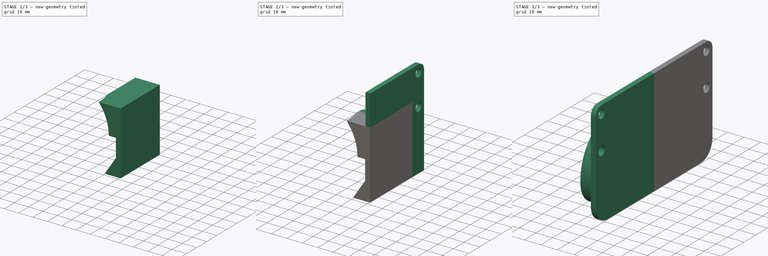
[diagram: build sequence overview — one tinted view per stage of 3, left to right]
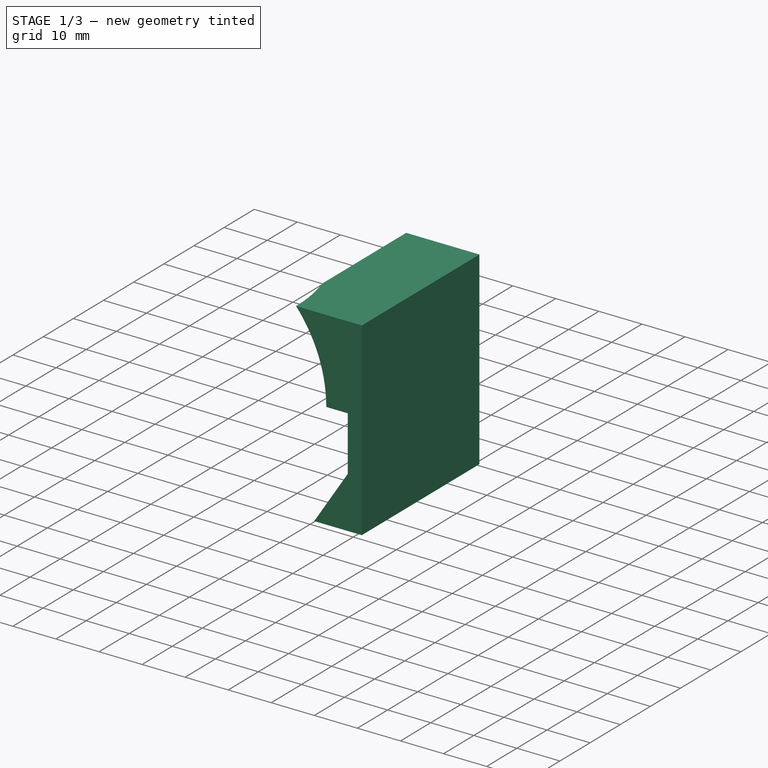
[diagram: stage 1 of 3 — iso view after this stage's code; geometry added in this stage tinted green]
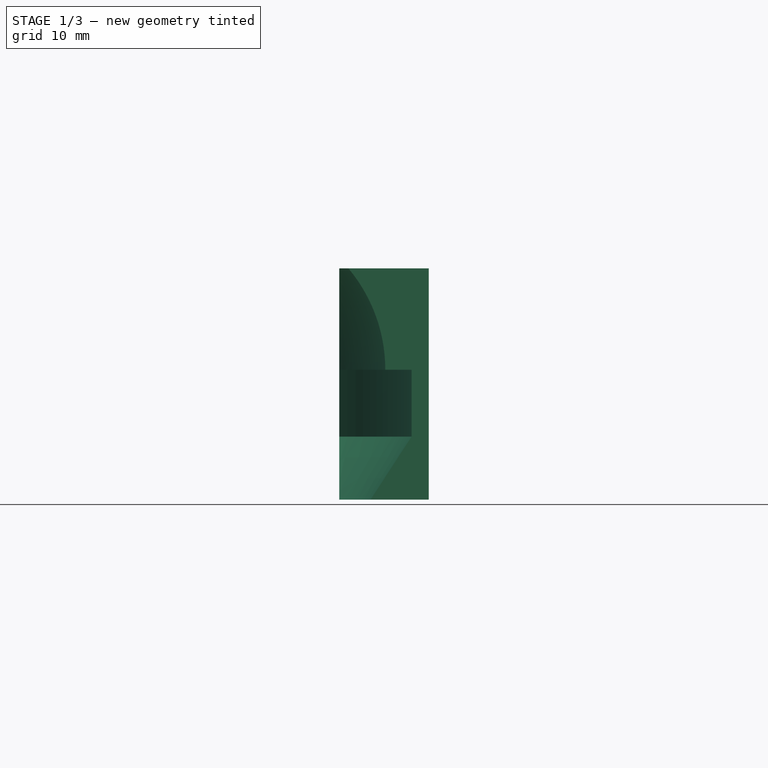
[diagram: stage 1 of 3 — front view after this stage's code; geometry added in this stage tinted green]
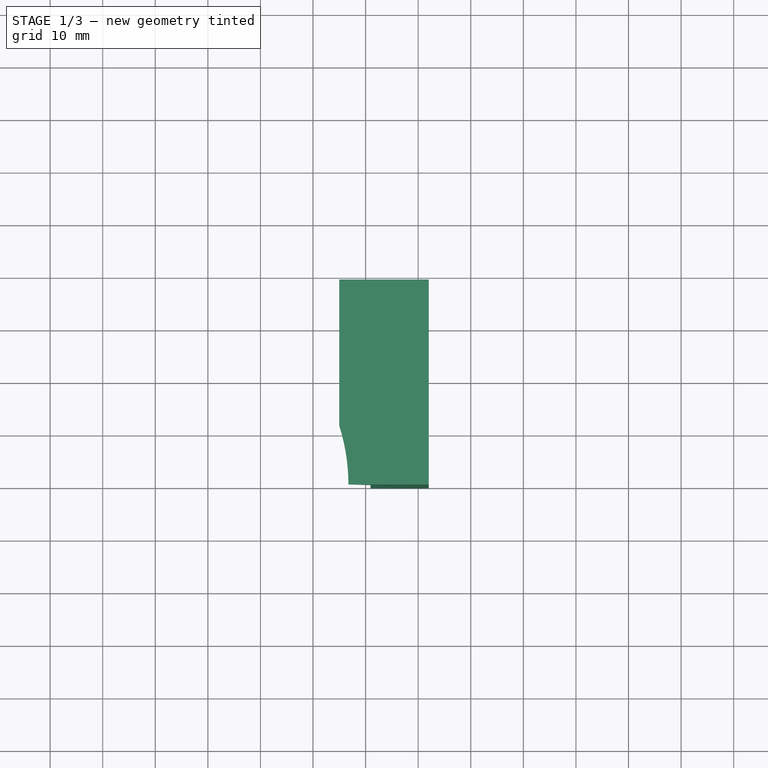
[diagram: stage 1 of 3 — top view after this stage's code; geometry added in this stage tinted green]
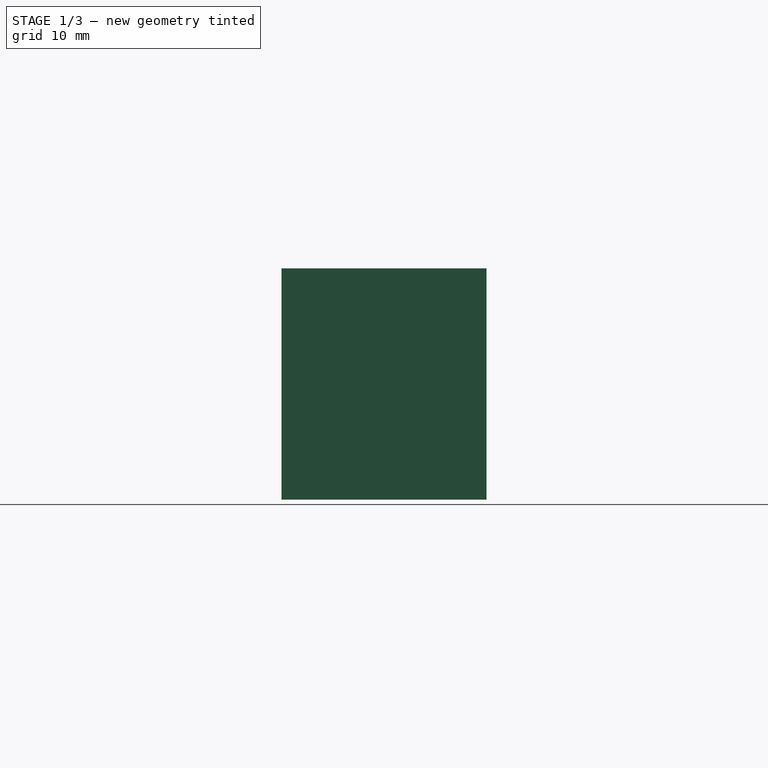
[diagram: stage 1 of 3 — right view after this stage's code; geometry added in this stage tinted green]
FCSTD DOCUMENT  (FreeCAD 0.19R24291 (Git))
Label: Толкатель
License: All rights reserved
LicenseURL: http://en.wikipedia.org/wiki/All_rights_reserved
objects: PartDesign::Fillet×3, Sketcher::SketchObject×2, PartDesign::AdditiveBox×1, PartDesign::Groove×1, PartDesign::Pad×1, PartDesign::Mirrored×1, PartDesign::Body×1
note: 16 computed .brp shape members not serialized (recipe doc carries the construction recipe); baked Part::Feature solids carry a one-line shape summary decoded from their .brp

FEATURE [Sketcher::SketchObject] Sketch
  FullyConstrained = true
  MapMode = 5
  Placement = pos=(0,0,0) rot=(1,0,0;1.5708rad)
  Support = -> [XZ_Plane]
  sketch-geometry (12):
    g0: LineSegment StartX=0 StartY=42.5 StartZ=0 EndX=17.5 EndY=42.5 EndZ=0
    g1: ArcOfCircle CenterX=13.71 CenterY=12.7 CenterZ=0 NormalX=0 NormalY=0 NormalZ=1 AngleXU=0 Radius=30.04 StartAngle=8e-16 EndAngle=1.44429
    g2: LineSegment StartX=43.75 StartY=12.7 StartZ=0 EndX=44.75 EndY=12.7 EndZ=0
    g3: LineSegment StartX=44.75 StartY=12.7 StartZ=0 EndX=44.75 EndY=7.7 EndZ=0
    g4: LineSegment StartX=44.75 StartY=7.7 StartZ=0 EndX=46.75 EndY=7.7 EndZ=0
    g5: LineSegment StartX=46.75 StartY=7.7 StartZ=0 EndX=48.75 EndY=0 EndZ=0
    g6: LineSegment StartX=0 StartY=42.5 StartZ=0 EndX=0 EndY=0 EndZ=0
    g7: LineSegment StartX=48.75 StartY=0 StartZ=0 EndX=48.75 EndY=12.7 EndZ=0
    g8: LineSegment StartX=48.75 StartY=12.7 StartZ=0 EndX=43.75 EndY=12.7 EndZ=0
    g9: LineSegment StartX=48.75 StartY=0 StartZ=0 EndX=1.42e-14 EndY=-75 EndZ=0
    g10: LineSegment StartX=1.42e-14 StartY=-75 StartZ=0 EndX=0 EndY=0 EndZ=0
    g11: GeomPoint X=39 Y=-15 Z=0
  constraints (34):
    c: PointOnObject(g0,g-2)
    c: Horizontal(g0)
    c: Distance(g0) = 17.5
    c: Distance(g0,g-1) = 42.5
    c: Coincident(g1,g0)
    c: Coincident(g2,g1)
    c: Horizontal(g2)
    c: Coincident(g3,g2)
    c: Vertical(g3)
    c: Distance(g1,g-2) = 43.75
    c: Distance(g2) = 1
    c: Distance(g3) = 5
    c: Perpendicular(g1,g2)
    c: Coincident(g4,g3)
    c: Horizontal(g4)
    c: Coincident(g5,g4)
    c: PointOnObject(g5,g-1)
    c: Distance(g4,g-1) = 7.7
    c: DistanceX(g4,g5) = 2
    c: DistanceX(g3,g5) = 4
    c: Coincident(g6,g0)
    c: Coincident(g6,g-1)
    c: Vertical(g7)
    c: Coincident(g7,g8)
    c: Coincident(g8,g1)
    c: Horizontal(g8)
    c: Coincident(g7,g5)
    c: Coincident(g7,g9)
    c: PointOnObject(g9,g-2)
    c: Coincident(g9,g10)
    c: Coincident(g10,g6)
    c: PointOnObject(g11,g9)
    c: DistanceX(g11) = 39
    c: DistanceY(g11) = -15
FEATURE [PartDesign::AdditiveBox] Box
  AttacherType = Attacher::AttachEngine3D
  AttachmentOffset = pos=(35,0,-12) rot=(0,0,1;0rad)
  Height = 44
  Length = 17
  MapMode = 5
  Placement = pos=(35,0,-12) rot=(0,0,1;0rad)
  Support = -> [XY_Plane]
  Width = 39
FEATURE [PartDesign::Groove] Groove
  Angle = 360
  Axis = (0,2e-16,1)
  Base = (0,0,0)
  BaseFeature = -> Box
  Placement = pos=(35,0,-12) rot=(0,0,1;0rad)
  Profile = -> Sketch
  ReferenceAxis = -> Sketch [V_Axis]
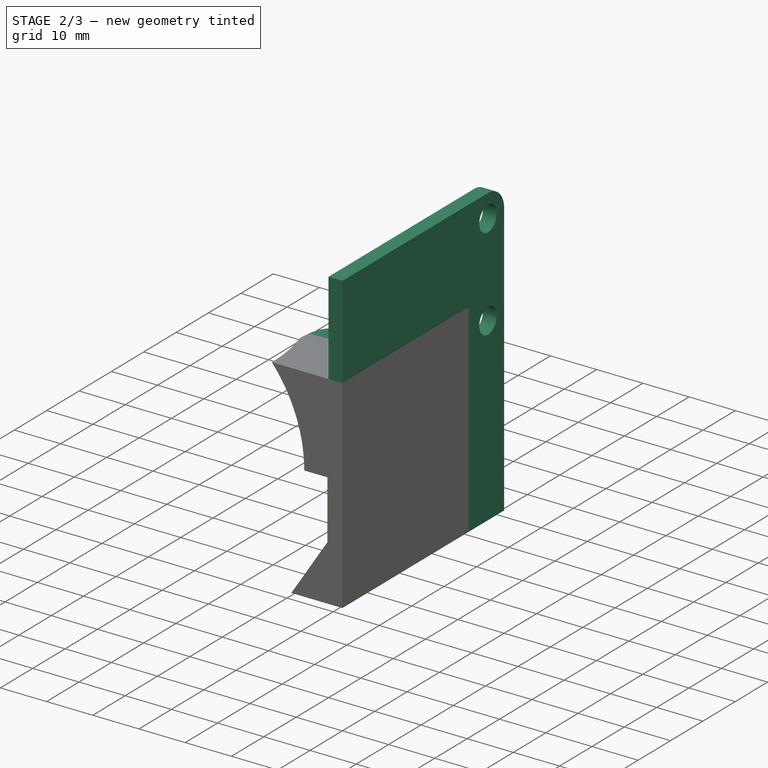
[diagram: stage 2 of 3 — iso view after this stage's code; geometry added in this stage tinted green]
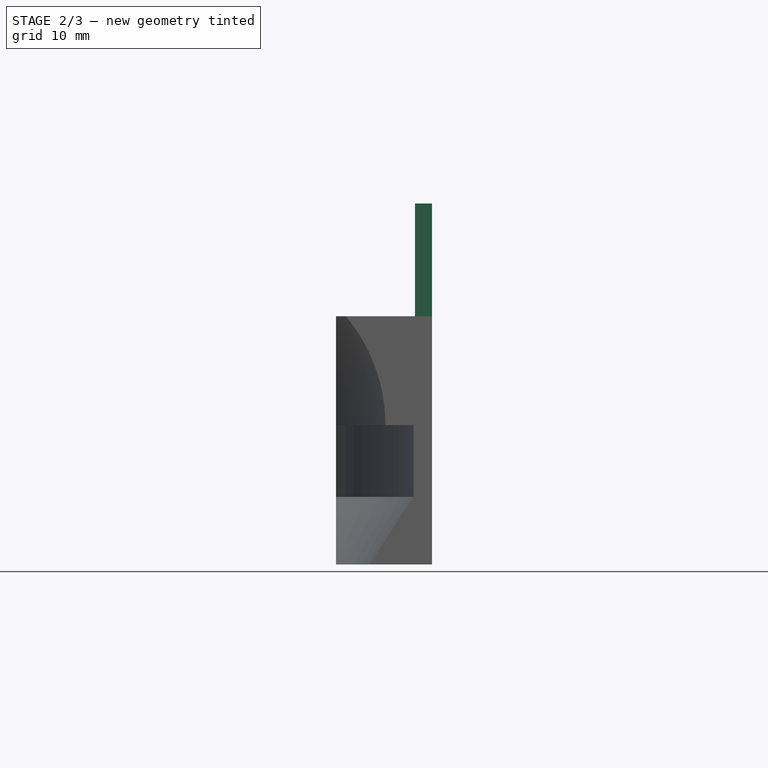
[diagram: stage 2 of 3 — front view after this stage's code; geometry added in this stage tinted green]
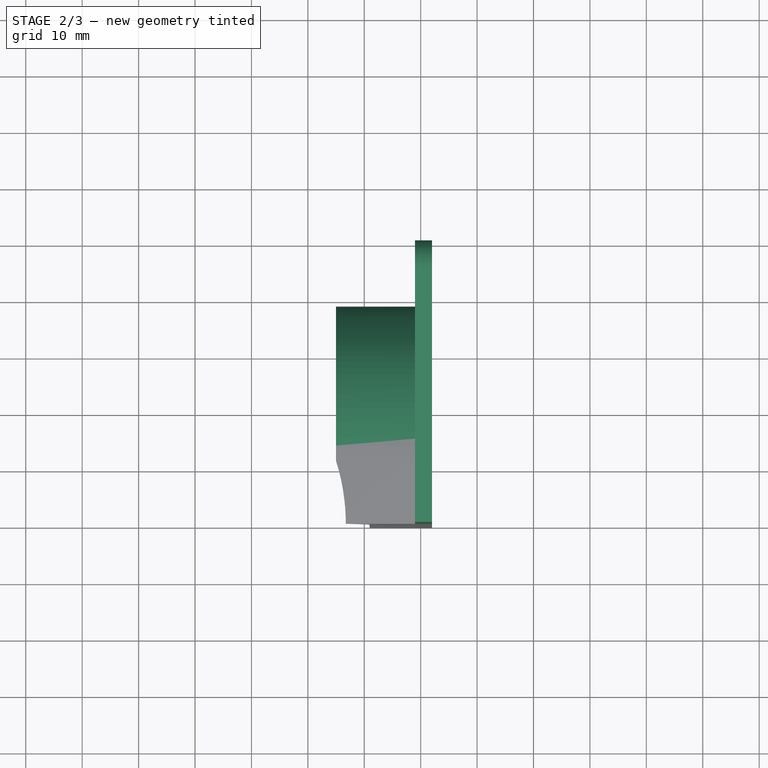
[diagram: stage 2 of 3 — top view after this stage's code; geometry added in this stage tinted green]
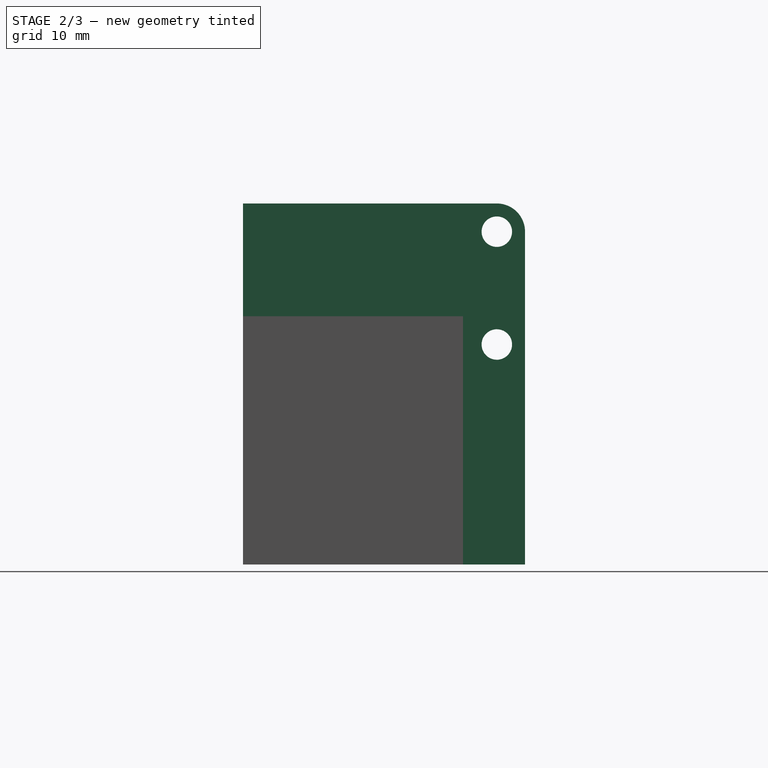
[diagram: stage 2 of 3 — right view after this stage's code; geometry added in this stage tinted green]
FEATURE [Sketcher::SketchObject] Sketch001
  FullyConstrained = true
  MapMode = 5
  Placement = pos=(52,0,-12) rot=(0.57735,0.57735,0.57735;2.0944rad)
  Support = -> [Groove]
  sketch-geometry (7):
    g0: Circle CenterX=45 CenterY=39 CenterZ=0 NormalX=0 NormalY=0 NormalZ=1 AngleXU=0 Radius=2.7
    g1: Circle CenterX=45 CenterY=59 CenterZ=0 NormalX=0 NormalY=0 NormalZ=1 AngleXU=0 Radius=2.7
    g2: LineSegment StartX=0 StartY=64 StartZ=0 EndX=45 EndY=64 EndZ=0
    g3: ArcOfCircle CenterX=45 CenterY=59 CenterZ=0 NormalX=0 NormalY=0 NormalZ=1 AngleXU=0 Radius=5 StartAngle=6.28319 EndAngle=7.85398
    g4: LineSegment StartX=50 StartY=59 StartZ=0 EndX=50 EndY=0 EndZ=0
    g5: LineSegment StartX=50 StartY=0 StartZ=0 EndX=0 EndY=0 EndZ=0
    g6: LineSegment StartX=0 StartY=64 StartZ=0 EndX=0 EndY=0 EndZ=0
  constraints (20):
    c: Vertical(g0,g1)
    c: Equal(g0,g1)
    c: Diameter(g0) = 5.4
    c: Distance(g0,g1) = 20
    c: Horizontal(g2)
    c: Coincident(g3,g1)
    c: Coincident(g3,g2)
    c: Tangent(g3,g2)
    c: Coincident(g4,g3)
    c: PointOnObject(g4,g-1)
    c: Vertical(g4)
    c: Tangent(g4,g3)
    c: Coincident(g5,g4)
    c: Diameter(g3) = 10
    c: Coincident(g6,g2)
    c: Vertical(g6)
    c: Distance(g0,g-1) = 39
    c: Distance(g0,g-2) = 45
    c: Coincident(g5,g6)
    c: Coincident(g5,g-1)
FEATURE [PartDesign::Pad] Pad
  BaseFeature = -> Groove
  Direction = (1,1,1)
  Length = 3
  Length2 = 100
  Placement = pos=(35,0,-12) rot=(0,0,1;0rad)
  Profile = -> Sketch001
  Reversed = true
  Type = 0
FEATURE [PartDesign::Fillet] Fillet
  Base = -> Pad [Edge8]
  BaseFeature = -> Pad
  Placement = pos=(35,0,-12) rot=(0,0,1;0rad)
  Radius = 28
  SupportTransform = false
FEATURE [PartDesign::Fillet] Fillet001
  Base = -> Fillet [Edge10]
  BaseFeature = -> Fillet
  Placement = pos=(35,0,-12) rot=(0,0,1;0rad)
  Radius = 15
  SupportTransform = false
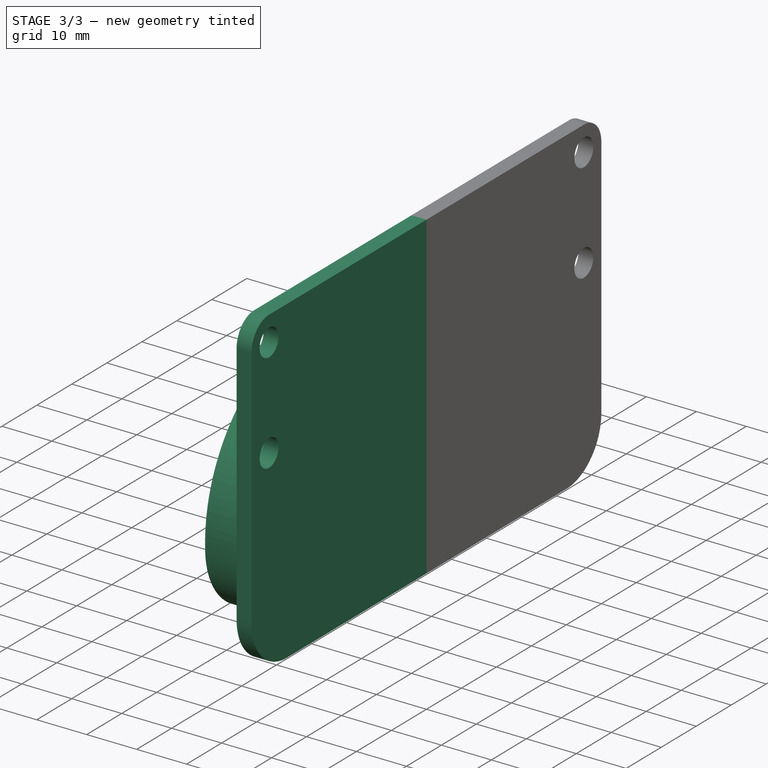
[diagram: stage 3 of 3 — iso view after this stage's code; geometry added in this stage tinted green]
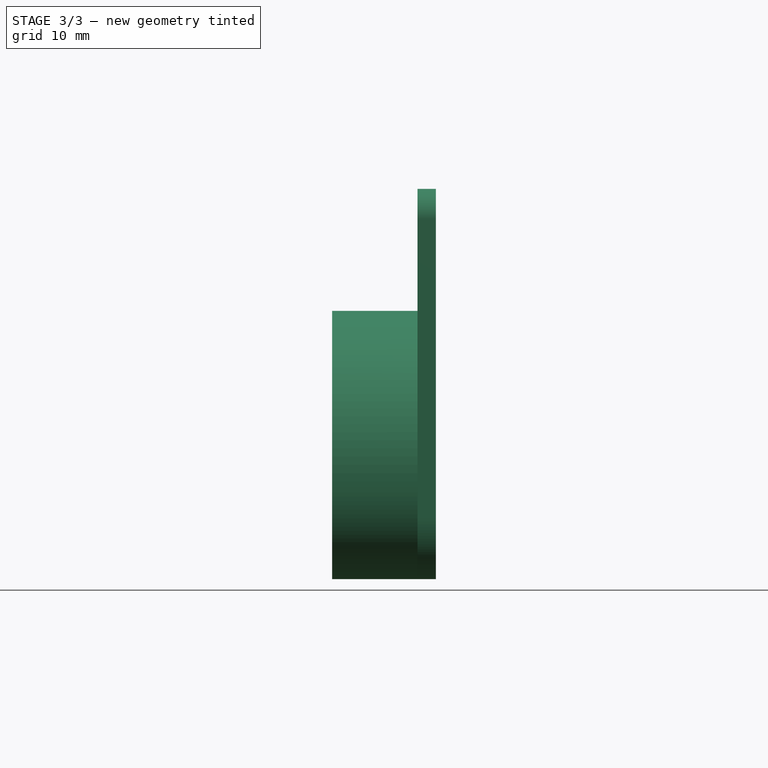
[diagram: stage 3 of 3 — front view after this stage's code; geometry added in this stage tinted green]
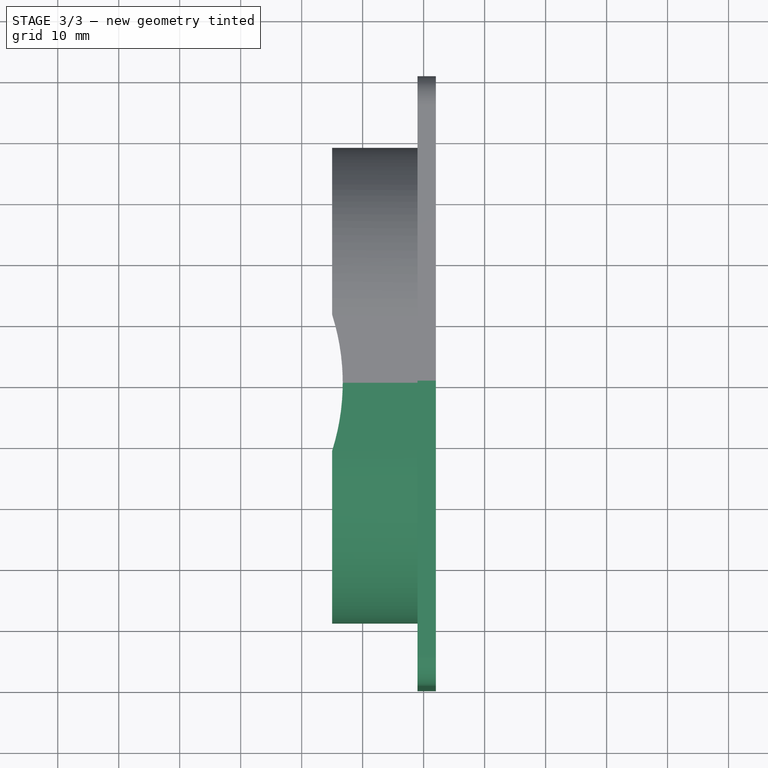
[diagram: stage 3 of 3 — top view after this stage's code; geometry added in this stage tinted green]
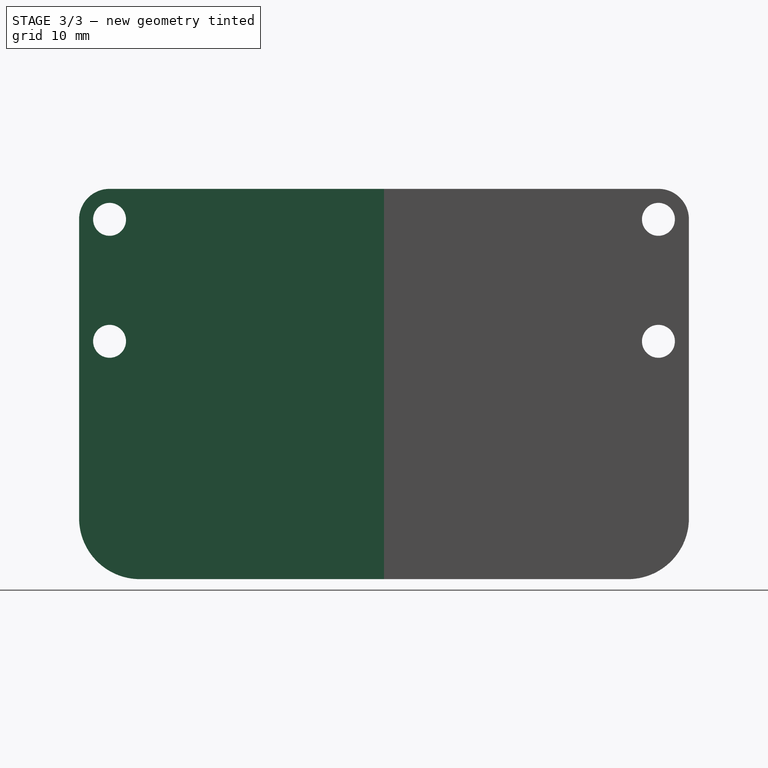
[diagram: stage 3 of 3 — right view after this stage's code; geometry added in this stage tinted green]
FEATURE [PartDesign::Fillet] Fillet002
  Base = -> Fillet001 [Edge43]
  BaseFeature = -> Fillet001
  Placement = pos=(35,0,-12) rot=(0,0,1;0rad)
  Radius = 10
  SupportTransform = false
FEATURE [PartDesign::Mirrored] Mirrored
  BaseFeature = -> Fillet002
  MirrorPlane = -> XZ_Plane
  Originals = -> [Box,Groove,Pad,Fillet,Fillet001,Fillet002]
  Placement = pos=(35,0,-12) rot=(0,0,1;0rad)
FEATURE [PartDesign::Body] Body
  Group = -> [Sketch,Box,Groove,Sketch001,Pad,Fillet,Fillet001,Fillet002,Mirrored]
  Origin = -> Origin
  Tip = -> Mirrored
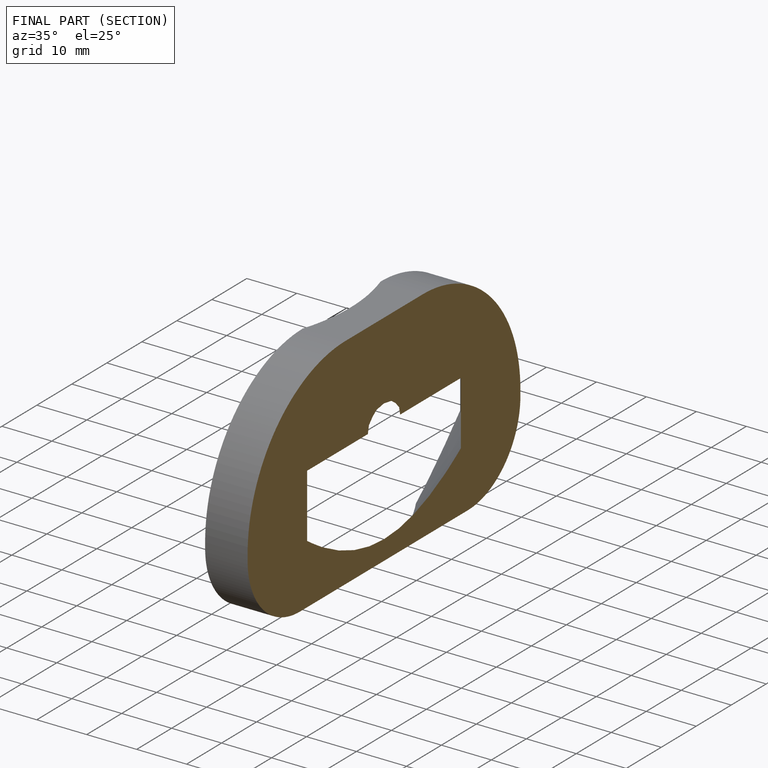
[diagram: finished part — half-section view (interior)]
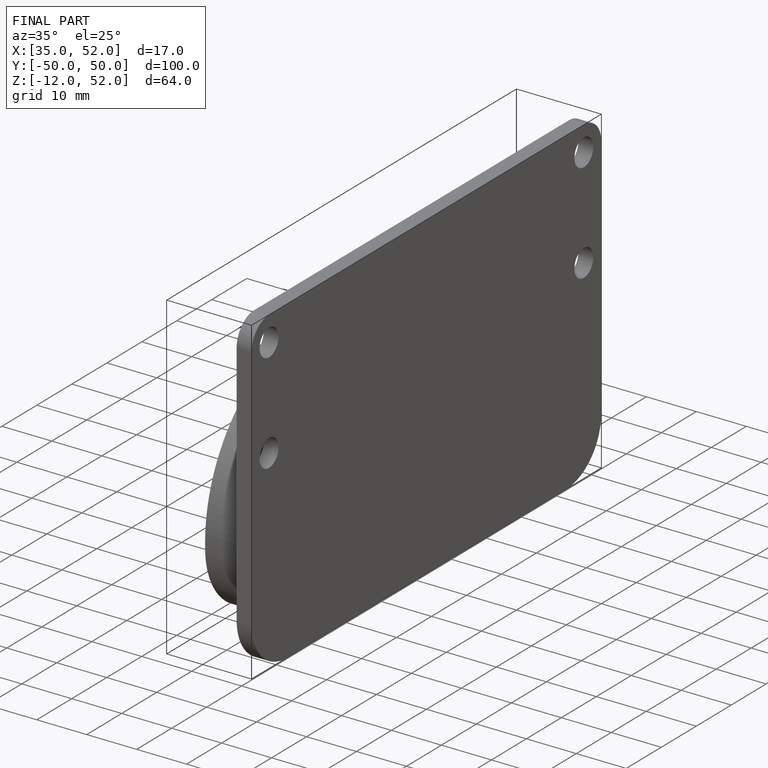
[diagram: finished part — iso view with bounding-box wireframe]
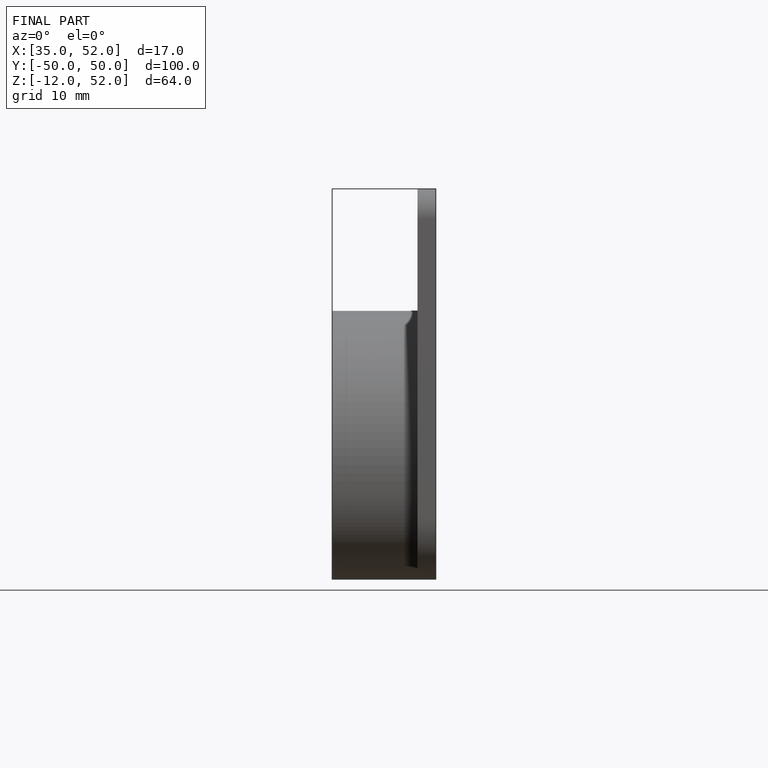
[diagram: finished part — front view with bounding-box wireframe]
